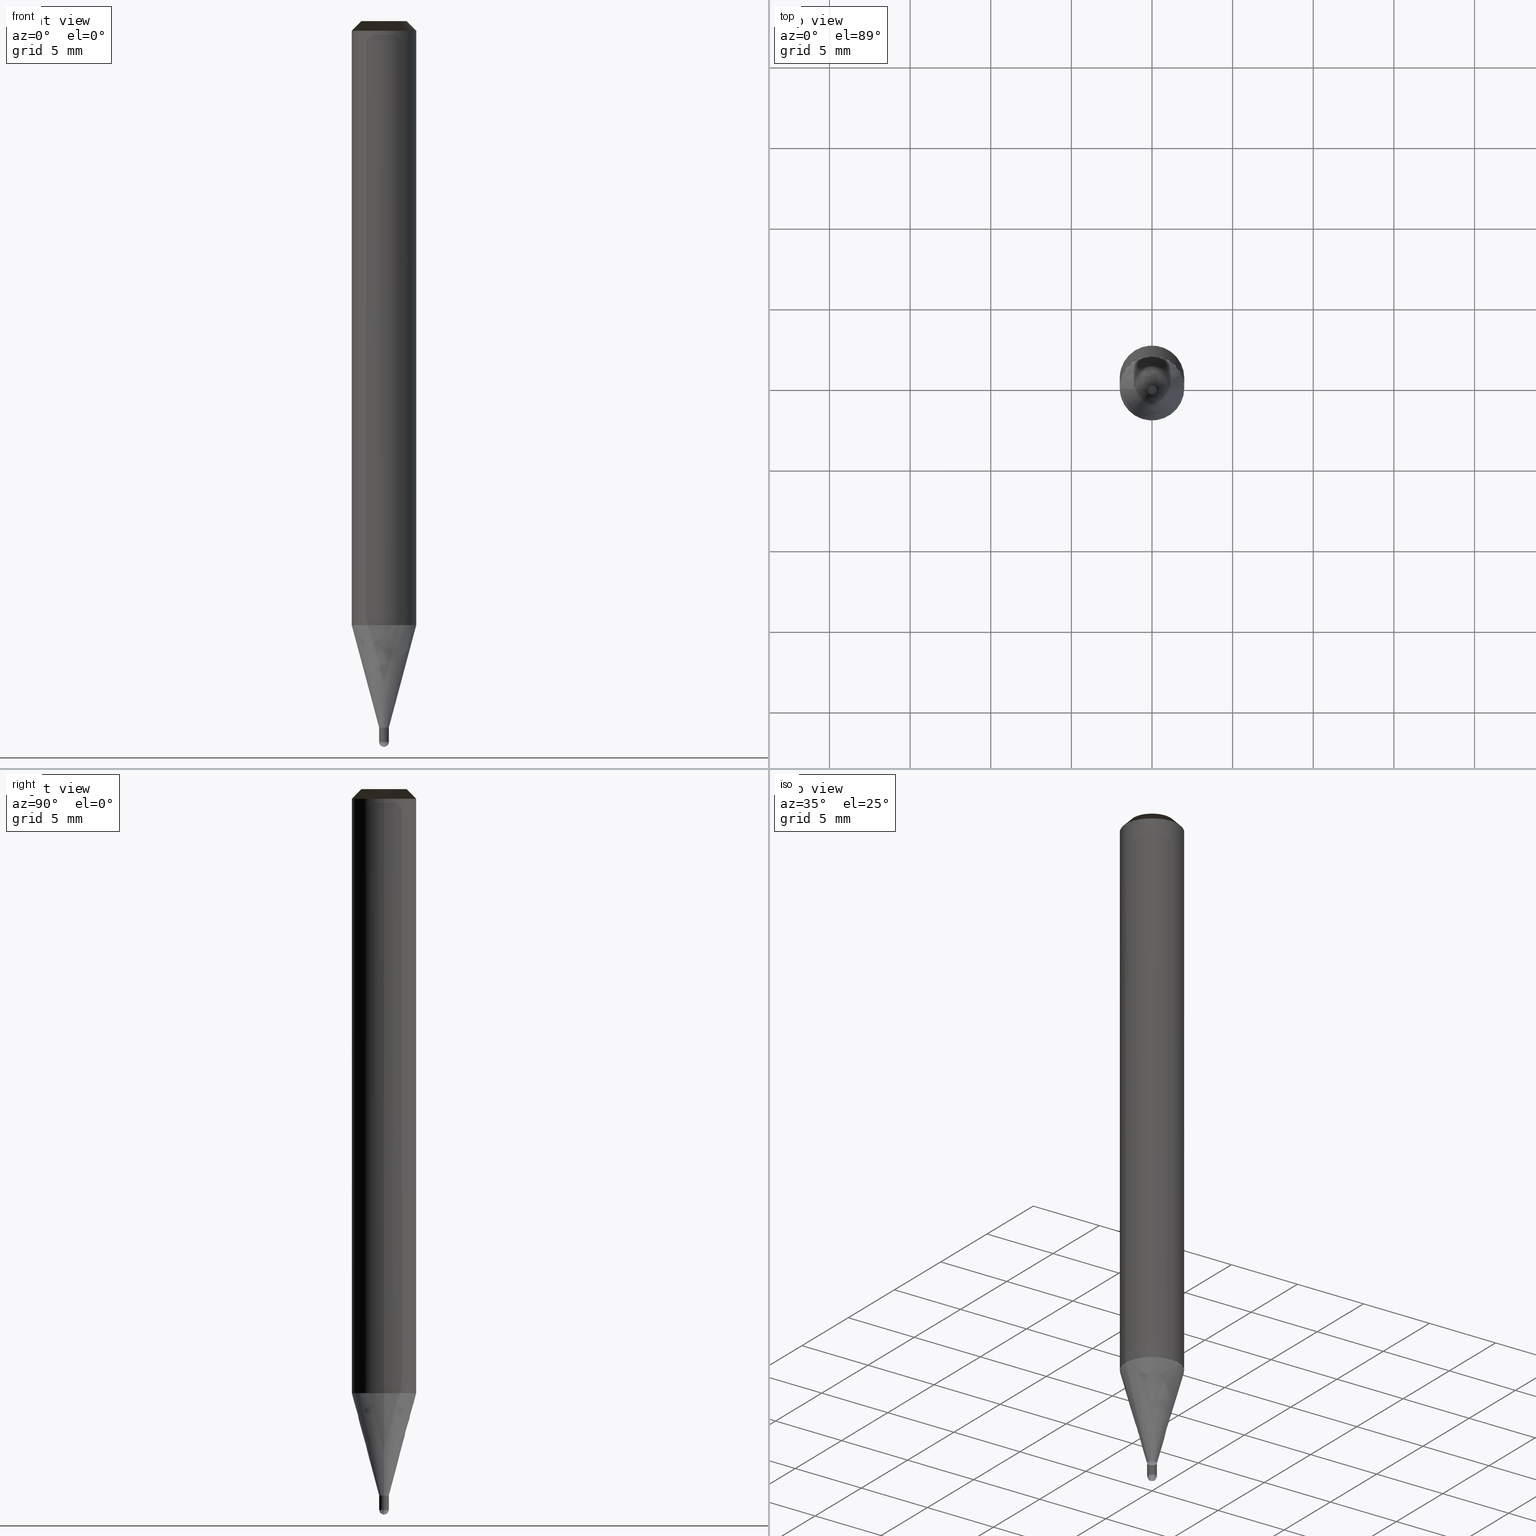
[diagram: canonical four-view strip — front | top / right | iso, engineering-drawing reading convention]
A machine part, canonical four-view strip (front | top / right | iso — engineering-drawing reading convention). The complete STEP part file that produces these views, byte-faithful:
ISO-10303-21;
HEADER;
/* Generated by ISBE GmbH (www.isbe.de) */
/* OPTION: using custom schema-name function */

FILE_DESCRIPTION(
/* description */ (''),
/* implementation_level */ '2;1');

FILE_NAME(
/*name*/ 'SHBS-2006-S04-STH',
/*time_stamp*/'2023-9-12T12:42:30',
/*author*/ ('ISBE GmbH'),
/*organization*/ ('ISBE GmbH'),
/*preprocessor_version*/ 'STEP IO v1.0',
/*originating_system*/ '',
/*authorisation*/ '');

FILE_SCHEMA (('AUTOMOTIVE_DESIGN'));
ENDSEC;

DATA;
#10=SHAPE_DEFINITION_REPRESENTATION(#11,#57);
#11=PRODUCT_DEFINITION_SHAPE('Document','',#13);
#12=PRODUCT_DEFINITION_CONTEXT('3D Mechanical Parts',#17,'design');
#13=PRODUCT_DEFINITION('A','First version',#14,#12);
#14=PRODUCT_DEFINITION_FORMATION_WITH_SPECIFIED_SOURCE('A','First version',#19,.MADE.);
#15=PRODUCT_RELATED_PRODUCT_CATEGORY('tool','tool',(#19));
#16=APPLICATION_PROTOCOL_DEFINITION('Draft International Standard', 'automotive_design',1999,#17);
#17=APPLICATION_CONTEXT('data for automotive mechanical design processes');
#18=PRODUCT_CONTEXT('3D Mechanical Parts',#17,'mechanical');
#19=PRODUCT('Document','Document','ISBE converted to STEP',(#18));
#20=(
LENGTH_UNIT()
NAMED_UNIT(*)
SI_UNIT(.MILLI.,.METRE.)
);
#21=(
NAMED_UNIT(*)
PLANE_ANGLE_UNIT()
SI_UNIT($,.RADIAN.)
);
#22=DIMENSIONAL_EXPONENTS(0.,0.,0.,0.,0.,0.,0.);
#23=PLANE_ANGLE_MEASURE_WITH_UNIT(PLANE_ANGLE_MEASURE(0.01745329252),#21);
#24=(
CONVERSION_BASED_UNIT('DEGREES',#23)
NAMED_UNIT(#22)
PLANE_ANGLE_UNIT()
);
#25=(
NAMED_UNIT(*)
SI_UNIT($,.STERADIAN.)
SOLID_ANGLE_UNIT()
);
#26=UNCERTAINTY_MEASURE_WITH_UNIT(LENGTH_MEASURE(0.001),#20, 'DISTANCE_ACCURACY_VALUE', 'Maximum model space distance between geometric entities at asserted connectivities');
#27=(
GEOMETRIC_REPRESENTATION_CONTEXT(3)
GLOBAL_UNCERTAINTY_ASSIGNED_CONTEXT((#26))
GLOBAL_UNIT_ASSIGNED_CONTEXT((#25,#24,#20))
REPRESENTATION_CONTEXT('ID1','3D')
);
#28=CARTESIAN_POINT('',(0.0,0.0,0.0));
#29=DIRECTION('',(1.0,0.0,0.0));
#30=DIRECTION('',(0.0,0.0,1.0));
#31=AXIS2_PLACEMENT_3D('',#28,#30,#29);
#32=CARTESIAN_POINT('',(0.0,0.0,0.0));
#33=DIRECTION('',(1.0,0.0,0.0));
#34=DIRECTION('',(0.0,0.0,1.0));
#35=AXIS2_PLACEMENT_3D('',#32,#34,#33);
#36=CARTESIAN_POINT('',(0.0,0.0,0.0));
#37=DIRECTION('',(1.0,0.0,0.0));
#38=DIRECTION('',(0.0,0.0,1.0));
#39=AXIS2_PLACEMENT_3D('',#36,#38,#37);
#40=CARTESIAN_POINT('',(0.0,0.0,0.0));
#41=DIRECTION('',(0.0,0.0,1.0));
#42=DIRECTION('',(1.0,0.0,0.0));
#43=AXIS2_PLACEMENT_3D('MCS',#40,#42,#41);
#44=CARTESIAN_POINT('',(0.0,0.0,37.455));
#45=DIRECTION('',(0.0,0.0,1.0));
#46=DIRECTION('',(1.0,0.0,0.0));
#47=AXIS2_PLACEMENT_3D('PCS',#44,#46,#45);
#48=CARTESIAN_POINT('',(0.0,0.0,-7.545));
#49=DIRECTION('',(0.0,0.0,1.0));
#50=DIRECTION('',(1.0,0.0,0.0));
#51=AXIS2_PLACEMENT_3D('CIP',#48,#50,#49);
#52=CARTESIAN_POINT('',(0.0,-0.3,-7.545));
#53=DIRECTION('',(0.0,0.0,1.0));
#54=DIRECTION('',(1.0,0.0,0.0));
#55=AXIS2_PLACEMENT_3D('CRP',#52,#54,#53);
#57=SHAPE_REPRESENTATION('Document',(#31,#35,#39,#43,#47,#51,#55),#27);
#58=DIRECTION('',(1.0,0.0,0.0));
#59=DIRECTION('',(0.0,0.0,1.0));
#60=CARTESIAN_POINT('',(-0.002999847207,-0.000030277632,-7.54495191028));
#61=CARTESIAN_POINT('',(-0.002905776231,-0.009165903705,-7.54484586486));
#62=CARTESIAN_POINT('',(-0.002787437382,-0.019017875034,-7.544383617825));
#63=CARTESIAN_POINT('',(-0.002636826318,-0.028685973617,-7.543613733885));
#64=CARTESIAN_POINT('',(-0.002435945538,-0.038285732755,-7.542537004147));
#65=CARTESIAN_POINT('',(-0.002168076614,-0.047830856446,-7.541154535024));
#66=CARTESIAN_POINT('',(-0.001817010618,-0.057318796148,-7.539467747097));
#67=CARTESIAN_POINT('',(-0.001367018916,-0.066742281978,-7.537478373655));
#68=CARTESIAN_POINT('',(-0.000802910246,-0.07609213921,-7.535188458912));
#69=CARTESIAN_POINT('',(-0.000110105636,-0.085358204975,-7.532600355911));
#70=CARTESIAN_POINT('',(0.000725282489,-0.09452968307,-7.529716724103));
#71=CARTESIAN_POINT('',(0.001716370932,-0.103595298852,-7.526540526615));
#72=CARTESIAN_POINT('',(0.002875427599,-0.112543374579,-7.523075027204));
#73=CARTESIAN_POINT('',(0.004213795439,-0.121361871551,-7.519323786905));
#74=CARTESIAN_POINT('',(0.005741819041,-0.130038419055,-7.515290660371));
#75=CARTESIAN_POINT('',(0.007468774374,-0.138560339578,-7.510979791912));
#76=CARTESIAN_POINT('',(0.009402802161,-0.146914675024,-7.506395611237));
#77=CARTESIAN_POINT('',(0.011550845378,-0.155088216542,-7.501542828902));
#78=CARTESIAN_POINT('',(0.013918591354,-0.163067539303,-7.496426431468));
#79=CARTESIAN_POINT('',(0.016510418993,-0.170839043008,-7.491051676379));
#80=CARTESIAN_POINT('',(0.019329351599,-0.178388998451,-7.48542408656));
#81=CARTESIAN_POINT('',(0.022377015833,-0.185703600219,-7.47954944474));
#82=CARTESIAN_POINT('',(0.025653607279,-0.192769025409,-7.473433787511));
#83=CARTESIAN_POINT('',(0.029157863118,-0.199571498097,-7.467083399123));
#84=CARTESIAN_POINT('',(0.032887042363,-0.206097359163,-7.460504805029));
#85=CARTESIAN_POINT('',(0.036836914085,-0.212333140963,-7.453704765181));
#86=CARTESIAN_POINT('',(0.041001754026,-0.218265646249,-7.446690267078));
#87=CARTESIAN_POINT('',(0.045374349933,-0.223882030643,-7.439468518592));
#88=CARTESIAN_POINT('',(0.049946015908,-0.229169887906,-7.432046940558));
#89=CARTESIAN_POINT('',(0.054706615983,-0.234117337175,-7.424433159147));
#90=CARTESIAN_POINT('',(0.059644597071,-0.238713111264,-7.416634998037));
#91=CARTESIAN_POINT('',(0.064747031372,-0.242946645108,-7.408660470363));
#92=CARTESIAN_POINT('',(0.069999668191,-0.246808163386,-7.400517770493));
#93=CARTESIAN_POINT('',(0.07538699508,-0.250288766322,-7.392215265601));
#94=CARTESIAN_POINT('',(0.080892308095,-0.253380512661,-7.383761487072));
#95=CARTESIAN_POINT('',(0.086497790861,-0.256076498843,-7.375165121735));
#96=CARTESIAN_POINT('',(0.09218460205,-0.258370933362,-7.366435002937));
#97=CARTESIAN_POINT('',(0.097932970784,-0.260259205385,-7.357580101464));
#98=CARTESIAN_POINT('',(0.103722299356,-0.2617379467,-7.348609516326));
#99=CARTESIAN_POINT('',(0.109531272607,-0.262805086148,-7.339532465407));
#100=CARTESIAN_POINT('',(0.115337973176,-0.263459895741,-7.330358275989));
#101=CARTESIAN_POINT('',(0.121120001781,-0.263703027768,-7.321096375173));
#102=CARTESIAN_POINT('',(0.126854601617,-0.263536542256,-7.311756280187));
#103=CARTESIAN_POINT('',(0.132518785892,-0.262963924268,-7.30234758861));
#104=CARTESIAN_POINT('',(0.138089467468,-0.261990090633,-7.29287996851));
#105=CARTESIAN_POINT('',(0.143543589553,-0.260621385798,-7.283363148505));
#106=CARTESIAN_POINT('',(0.148858256343,-0.258865566623,-7.273806907772));
#107=CARTESIAN_POINT('',(0.154010862521,-0.256731776077,-7.264221065994));
#108=CARTESIAN_POINT('',(0.158979220509,-0.25423050588,-7.254615473272));
#109=CARTESIAN_POINT('',(0.163741684402,-0.251373548308,-7.245));
#110=CARTESIAN_POINT('',(0.198195797186,-0.225207517588,-7.17));
#111=CARTESIAN_POINT('',(0.228527994425,-0.194357803456,-7.095));
#112=CARTESIAN_POINT('',(0.254107451667,-0.159465993262,-7.02));
#113=CARTESIAN_POINT('',(0.274402188094,-0.121257738595,-6.945));
#114=CARTESIAN_POINT('',(0.288990130227,-0.080527663764,-6.87));
#115=CARTESIAN_POINT('',(0.29756788987,-0.038122839853,-6.795));
#116=CARTESIAN_POINT('',(0.29995707373,0.005074831981,-6.72));
#117=CARTESIAN_POINT('',(0.296107993497,0.048166961572,-6.645));
#118=CARTESIAN_POINT('',(0.286100699223,0.090257353739,-6.57));
#119=CARTESIAN_POINT('',(0.270143314503,0.130470646619,-6.495));
#120=CARTESIAN_POINT('',(0.24856770809,0.167970516743,-6.42));
#121=CARTESIAN_POINT('',(0.221822591958,0.201977072206,-6.345));
#122=CARTESIAN_POINT('',(0.002999847207,0.000030277632,-7.54495191028));
#123=CARTESIAN_POINT('',(0.002905776231,0.009165903705,-7.54484586486));
#124=CARTESIAN_POINT('',(0.002787437382,0.019017875034,-7.544383617825));
#125=CARTESIAN_POINT('',(0.002636826318,0.028685973617,-7.543613733885));
#126=CARTESIAN_POINT('',(0.002435945538,0.038285732755,-7.542537004147));
#127=CARTESIAN_POINT('',(0.002168076614,0.047830856446,-7.541154535024));
#128=CARTESIAN_POINT('',(0.001817010618,0.057318796148,-7.539467747097));
#129=CARTESIAN_POINT('',(0.001367018916,0.066742281978,-7.537478373655));
#130=CARTESIAN_POINT('',(0.000802910246,0.07609213921,-7.535188458912));
#131=CARTESIAN_POINT('',(0.000110105636,0.085358204975,-7.532600355911));
#132=CARTESIAN_POINT('',(-0.000725282489,0.09452968307,-7.529716724103));
#133=CARTESIAN_POINT('',(-0.001716370932,0.103595298852,-7.526540526615));
#134=CARTESIAN_POINT('',(-0.002875427599,0.112543374579,-7.523075027204));
#135=CARTESIAN_POINT('',(-0.004213795439,0.121361871551,-7.519323786905));
#136=CARTESIAN_POINT('',(-0.005741819041,0.130038419055,-7.515290660371));
#137=CARTESIAN_POINT('',(-0.007468774374,0.138560339578,-7.510979791912));
#138=CARTESIAN_POINT('',(-0.009402802161,0.146914675024,-7.506395611237));
#139=CARTESIAN_POINT('',(-0.011550845378,0.155088216542,-7.501542828902));
#140=CARTESIAN_POINT('',(-0.013918591354,0.163067539303,-7.496426431468));
#141=CARTESIAN_POINT('',(-0.016510418993,0.170839043008,-7.491051676379));
#142=CARTESIAN_POINT('',(-0.019329351599,0.178388998451,-7.48542408656));
#143=CARTESIAN_POINT('',(-0.022377015833,0.185703600219,-7.47954944474));
#144=CARTESIAN_POINT('',(-0.025653607279,0.192769025409,-7.473433787511));
#145=CARTESIAN_POINT('',(-0.029157863118,0.199571498097,-7.467083399123));
#146=CARTESIAN_POINT('',(-0.032887042363,0.206097359163,-7.460504805029));
#147=CARTESIAN_POINT('',(-0.036836914085,0.212333140963,-7.453704765181));
#148=CARTESIAN_POINT('',(-0.041001754026,0.218265646249,-7.446690267078));
#149=CARTESIAN_POINT('',(-0.045374349933,0.223882030643,-7.439468518592));
#150=CARTESIAN_POINT('',(-0.049946015908,0.229169887906,-7.432046940558));
#151=CARTESIAN_POINT('',(-0.054706615983,0.234117337175,-7.424433159147));
#152=CARTESIAN_POINT('',(-0.059644597071,0.238713111264,-7.416634998037));
#153=CARTESIAN_POINT('',(-0.064747031372,0.242946645108,-7.408660470363));
#154=CARTESIAN_POINT('',(-0.069999668191,0.246808163386,-7.400517770493));
#155=CARTESIAN_POINT('',(-0.07538699508,0.250288766322,-7.392215265601));
#156=CARTESIAN_POINT('',(-0.080892308095,0.253380512661,-7.383761487072));
#157=CARTESIAN_POINT('',(-0.086497790861,0.256076498843,-7.375165121735));
#158=CARTESIAN_POINT('',(-0.09218460205,0.258370933362,-7.366435002937));
#159=CARTESIAN_POINT('',(-0.097932970784,0.260259205385,-7.357580101464));
#160=CARTESIAN_POINT('',(-0.103722299356,0.2617379467,-7.348609516326));
#161=CARTESIAN_POINT('',(-0.109531272607,0.262805086148,-7.339532465407));
#162=CARTESIAN_POINT('',(-0.115337973176,0.263459895741,-7.330358275989));
#163=CARTESIAN_POINT('',(-0.121120001781,0.263703027768,-7.321096375173));
#164=CARTESIAN_POINT('',(-0.126854601617,0.263536542256,-7.311756280187));
#165=CARTESIAN_POINT('',(-0.132518785892,0.262963924268,-7.30234758861));
#166=CARTESIAN_POINT('',(-0.138089467468,0.261990090633,-7.29287996851));
#167=CARTESIAN_POINT('',(-0.143543589553,0.260621385798,-7.283363148505));
#168=CARTESIAN_POINT('',(-0.148858256343,0.258865566623,-7.273806907772));
#169=CARTESIAN_POINT('',(-0.154010862521,0.256731776077,-7.264221065994));
#170=CARTESIAN_POINT('',(-0.158979220509,0.25423050588,-7.254615473272));
#171=CARTESIAN_POINT('',(-0.163741684402,0.251373548308,-7.245));
#172=CARTESIAN_POINT('',(-0.198195797186,0.225207517588,-7.17));
#173=CARTESIAN_POINT('',(-0.228527994425,0.194357803456,-7.095));
#174=CARTESIAN_POINT('',(-0.254107451667,0.159465993262,-7.02));
#175=CARTESIAN_POINT('',(-0.274402188094,0.121257738595,-6.945));
#176=CARTESIAN_POINT('',(-0.288990130227,0.080527663764,-6.87));
#177=CARTESIAN_POINT('',(-0.29756788987,0.038122839853,-6.795));
#178=CARTESIAN_POINT('',(-0.29995707373,-0.005074831981,-6.72));
#179=CARTESIAN_POINT('',(-0.296107993497,-0.048166961572,-6.645));
#180=CARTESIAN_POINT('',(-0.286100699223,-0.090257353739,-6.57));
#181=CARTESIAN_POINT('',(-0.270143314503,-0.130470646619,-6.495));
#182=CARTESIAN_POINT('',(-0.24856770809,-0.167970516743,-6.42));
#183=CARTESIAN_POINT('',(-0.221822591958,-0.201977072206,-6.345));
#184=CARTESIAN_POINT('',(0.0,0.0,-7.545));
#185=CARTESIAN_POINT('',(0.3,0.0,-7.545));
#186=CARTESIAN_POINT('',(0.3,0.3,-7.545));
#187=CARTESIAN_POINT('',(0.0,0.3,-7.545));
#188=CARTESIAN_POINT('',(-0.3,0.3,-7.545));
#189=CARTESIAN_POINT('',(-0.3,0.0,-7.545));
#190=CARTESIAN_POINT('',(0.3,0.0,-7.245));
#191=CARTESIAN_POINT('',(0.3,0.3,-7.245));
#192=CARTESIAN_POINT('',(0.0,0.3,-7.245));
#193=CARTESIAN_POINT('',(-0.3,0.3,-7.245));
#194=CARTESIAN_POINT('',(-0.3,0.0,-7.245));
#195=CARTESIAN_POINT('',(0.3,0.0,-6.345));
#196=CARTESIAN_POINT('',(0.3,0.3,-6.345));
#197=CARTESIAN_POINT('',(0.0,0.3,-6.345));
#198=CARTESIAN_POINT('',(-0.3,0.3,-6.345));
#199=CARTESIAN_POINT('',(-0.3,0.0,-6.345));
#200=CARTESIAN_POINT('',(0.0,0.0,-6.345));
#201=CARTESIAN_POINT('',(-0.3,-0.3,-7.545));
#202=CARTESIAN_POINT('',(0.0,-0.3,-7.545));
#203=CARTESIAN_POINT('',(0.3,-0.3,-7.545));
#204=CARTESIAN_POINT('',(-0.3,-0.3,-7.245));
#205=CARTESIAN_POINT('',(0.0,-0.3,-7.245));
#206=CARTESIAN_POINT('',(0.3,-0.3,-7.245));
#207=CARTESIAN_POINT('',(-0.3,-0.3,-6.345));
#208=CARTESIAN_POINT('',(0.0,-0.3,-6.345));
#209=CARTESIAN_POINT('',(0.3,-0.3,-6.345));
#210=CARTESIAN_POINT('',(0.3,0.0,-6.344486372867));
#211=CARTESIAN_POINT('',(0.3,0.3,-6.344486372867));
#212=CARTESIAN_POINT('',(0.0,0.3,-6.344486372867));
#213=CARTESIAN_POINT('',(-0.3,0.3,-6.344486372867));
#214=CARTESIAN_POINT('',(-0.3,0.0,-6.344486372867));
#215=CARTESIAN_POINT('',(2.0,0.0,-0.0));
#216=CARTESIAN_POINT('',(2.0,2.0,-0.0));
#217=CARTESIAN_POINT('',(0.0,2.0,-0.0));
#218=CARTESIAN_POINT('',(-2.0,2.0,-0.0));
#219=CARTESIAN_POINT('',(-2.0,0.0,-0.0));
#220=CARTESIAN_POINT('',(2.0,0.0,36.855));
#221=CARTESIAN_POINT('',(2.0,2.0,36.855));
#222=CARTESIAN_POINT('',(0.0,2.0,36.855));
#223=CARTESIAN_POINT('',(-2.0,2.0,36.855));
#224=CARTESIAN_POINT('',(-2.0,0.0,36.855));
#225=CARTESIAN_POINT('',(1.4,0.0,37.455));
#226=CARTESIAN_POINT('',(1.4,1.4,37.455));
#227=CARTESIAN_POINT('',(0.0,1.4,37.455));
#228=CARTESIAN_POINT('',(-1.4,1.4,37.455));
#229=CARTESIAN_POINT('',(-1.4,0.0,37.455));
#230=CARTESIAN_POINT('',(0.0,0.0,37.455));
#231=CARTESIAN_POINT('',(-0.3,-0.3,-6.344486372867));
#232=CARTESIAN_POINT('',(0.0,-0.3,-6.344486372867));
#233=CARTESIAN_POINT('',(0.3,-0.3,-6.344486372867));
#234=CARTESIAN_POINT('',(-2.0,-2.0,-0.0));
#235=CARTESIAN_POINT('',(0.0,-2.0,-0.0));
#236=CARTESIAN_POINT('',(2.0,-2.0,-0.0));
#237=CARTESIAN_POINT('',(-2.0,-2.0,36.855));
#238=CARTESIAN_POINT('',(0.0,-2.0,36.855));
#239=CARTESIAN_POINT('',(2.0,-2.0,36.855));
#240=CARTESIAN_POINT('',(-1.4,-1.4,37.455));
#241=CARTESIAN_POINT('',(0.0,-1.4,37.455));
#242=CARTESIAN_POINT('',(1.4,-1.4,37.455));
#243=(
BOUNDED_CURVE()
B_SPLINE_CURVE(1,(#60,#61,#62,#63,#64,#65,#66,#67,#68,#69,#70,#71,#72,#73,#74,#75,#76,#77,#78,#79,#80,#81,#82,#83,#84,#85,#86,#87,#88,#89,#90,#91,#92,#93,#94,#95,#96,#97,#98,#99,#100,#101,#102,#103,#104,#105,#106,#107,#108,#109,#110,#111,#112,#113,#114,#115,#116,#117,#118,#119,#120,#121),.UNSPECIFIED.,.F.,.F.)
B_SPLINE_CURVE_WITH_KNOTS((2,1,1,1,1,1,1,1,1,1,1,1,1,1,1,1,1,1,1,1,1,1,1,1,1,1,1,1,1,1,1,1,1,1,1,1,1,1,1,1,1,1,1,1,1,1,1,1,1,1,1,1,1,1,1,1,1,1,1,1,1,2),
(0.0,0.005937244731,0.012346775879,0.018649965959,0.024928573328,0.031198340022,0.03746464194,0.04373002341,0.049996064458,0.056264008034,0.062535015704,0.068810286359,0.07509111552,0.081378924906,0.087675274896,0.093981865812,0.100300531046,0.10663322378,0.112981998436,0.119348987735,0.125736376124,0.132146370315,0.138581167641,0.145042922998,0.151533715079,0.158055512651,0.164610141568,0.171199253178,0.177824294744,0.184486482394,0.191186777083,0.197925863911,0.204704135107,0.211521676857,0.218378260116,0.225273335412,0.232206031643,0.239175158761,0.246179214203,0.253216392898,0.26028460062,0.267381470458,0.274504382144,0.281650483952,0.28881671691,0.295999841015,0.303196463191,0.310403066677,0.317616041572,0.324831716249,0.381095739895,0.437359763541,0.493623787187,0.549887810833,0.606151834479,0.662415858125,0.71867988177,0.774943905416,0.831207929062,0.887471952708,0.943735976354,1.0),.UNSPECIFIED.)
CURVE()
GEOMETRIC_REPRESENTATION_ITEM()
RATIONAL_B_SPLINE_CURVE((1.0,1.0,1.0,1.0,1.0,1.0,1.0,1.0,1.0,1.0,1.0,1.0,1.0,1.0,1.0,1.0,1.0,1.0,1.0,1.0,1.0,1.0,1.0,1.0,1.0,1.0,1.0,1.0,1.0,1.0,1.0,1.0,1.0,1.0,1.0,1.0,1.0,1.0,1.0,1.0,1.0,1.0,1.0,1.0,1.0,1.0,1.0,1.0,1.0,1.0,1.0,1.0,1.0,1.0,1.0,1.0,1.0,1.0,1.0,1.0,1.0,1.0))
REPRESENTATION_ITEM('')
);
#244=(
BOUNDED_CURVE()
B_SPLINE_CURVE(1,(#122,#123,#124,#125,#126,#127,#128,#129,#130,#131,#132,#133,#134,#135,#136,#137,#138,#139,#140,#141,#142,#143,#144,#145,#146,#147,#148,#149,#150,#151,#152,#153,#154,#155,#156,#157,#158,#159,#160,#161,#162,#163,#164,#165,#166,#167,#168,#169,#170,#171,#172,#173,#174,#175,#176,#177,#178,#179,#180,#181,#182,#183),.UNSPECIFIED.,.F.,.F.)
B_SPLINE_CURVE_WITH_KNOTS((2,1,1,1,1,1,1,1,1,1,1,1,1,1,1,1,1,1,1,1,1,1,1,1,1,1,1,1,1,1,1,1,1,1,1,1,1,1,1,1,1,1,1,1,1,1,1,1,1,1,1,1,1,1,1,1,1,1,1,1,1,2),
(0.0,0.005937244731,0.012346775879,0.018649965959,0.024928573328,0.031198340022,0.03746464194,0.04373002341,0.049996064458,0.056264008034,0.062535015704,0.068810286359,0.07509111552,0.081378924906,0.087675274896,0.093981865812,0.100300531046,0.10663322378,0.112981998436,0.119348987735,0.125736376124,0.132146370315,0.138581167641,0.145042922998,0.151533715079,0.158055512651,0.164610141568,0.171199253178,0.177824294744,0.184486482394,0.191186777083,0.197925863911,0.204704135107,0.211521676857,0.218378260116,0.225273335412,0.232206031643,0.239175158761,0.246179214203,0.253216392898,0.26028460062,0.267381470458,0.274504382144,0.281650483952,0.28881671691,0.295999841015,0.303196463191,0.310403066677,0.317616041572,0.324831716249,0.381095739895,0.437359763541,0.493623787187,0.549887810833,0.606151834479,0.662415858125,0.71867988177,0.774943905416,0.831207929062,0.887471952708,0.943735976354,1.0),.UNSPECIFIED.)
CURVE()
GEOMETRIC_REPRESENTATION_ITEM()
RATIONAL_B_SPLINE_CURVE((1.0,1.0,1.0,1.0,1.0,1.0,1.0,1.0,1.0,1.0,1.0,1.0,1.0,1.0,1.0,1.0,1.0,1.0,1.0,1.0,1.0,1.0,1.0,1.0,1.0,1.0,1.0,1.0,1.0,1.0,1.0,1.0,1.0,1.0,1.0,1.0,1.0,1.0,1.0,1.0,1.0,1.0,1.0,1.0,1.0,1.0,1.0,1.0,1.0,1.0,1.0,1.0,1.0,1.0,1.0,1.0,1.0,1.0,1.0,1.0,1.0,1.0))
REPRESENTATION_ITEM('')
);
#245=SHAPE_REPRESENTATION_RELATIONSHIP('','',#57,#246);
#246=GEOMETRICALLY_BOUNDED_WIREFRAME_SHAPE_REPRESENTATION('Curves',(#247,#31),#27);
#247=GEOMETRIC_CURVE_SET('CurveSet',(#243,#244));
#248=(
BOUNDED_SURFACE()
B_SPLINE_SURFACE(2,2,(
(#184,#184,#184,#184,#184),
(#185,#186,#187,#188,#189),
(#190,#191,#192,#193,#194)
), .UNSPECIFIED.,.F.,.F.,.F.)
B_SPLINE_SURFACE_WITH_KNOTS((3,3),(3,2,3),(
0.0,1.0),(
0.0,0.5,1.0), .UNSPECIFIED.)
GEOMETRIC_REPRESENTATION_ITEM()
RATIONAL_B_SPLINE_SURFACE(((1.0,0.707106781187,1.0,0.707106781187,1.0),
(0.707106781187,0.5,0.707106781187,0.5,0.707106781187),
(1.0,0.707106781187,1.0,0.707106781187,1.0)
))
REPRESENTATION_ITEM('')
SURFACE()
);
#249=(
BOUNDED_CURVE()
B_SPLINE_CURVE(2,(#190,#191,#192,#193,#194),.UNSPECIFIED.,.F.,.F.)
B_SPLINE_CURVE_WITH_KNOTS((3,2,3),
(0.0,0.5,1.0),.UNSPECIFIED.)
CURVE()
GEOMETRIC_REPRESENTATION_ITEM()
RATIONAL_B_SPLINE_CURVE((1.0,0.707106781187,1.0,0.707106781187,1.0))
REPRESENTATION_ITEM('')
);
#250=(
BOUNDED_CURVE()
B_SPLINE_CURVE(2,(#194,#189,#184),.UNSPECIFIED.,.F.,.F.)
B_SPLINE_CURVE_WITH_KNOTS((3,3),
(0.0,1.0),.UNSPECIFIED.)
CURVE()
GEOMETRIC_REPRESENTATION_ITEM()
RATIONAL_B_SPLINE_CURVE((1.0,0.707106781187,1.0))
REPRESENTATION_ITEM('')
);
#251=(
BOUNDED_CURVE()
B_SPLINE_CURVE(2,(#184,#185,#190),.UNSPECIFIED.,.F.,.F.)
B_SPLINE_CURVE_WITH_KNOTS((3,3),
(0.0,1.0),.UNSPECIFIED.)
CURVE()
GEOMETRIC_REPRESENTATION_ITEM()
RATIONAL_B_SPLINE_CURVE((1.0,0.707106781187,1.0))
REPRESENTATION_ITEM('')
);
#252=VERTEX_POINT('',#184);
#253=VERTEX_POINT('',#190);
#254=VERTEX_POINT('',#194);
#255=EDGE_CURVE('',#253,#254,#249,.T.);
#256=EDGE_CURVE('',#254,#252,#250,.T.);
#257=EDGE_CURVE('',#252,#253,#251,.T.);
#258=ORIENTED_EDGE('',*,*,#255,.T.);
#259=ORIENTED_EDGE('',*,*,#256,.T.);
#260=ORIENTED_EDGE('',*,*,#257,.T.);
#261=EDGE_LOOP('',(#258,#259,#260));
#262=FACE_OUTER_BOUND('',#261,.T.);
#263=ADVANCED_FACE('',(#262),#248,.T.);
#264=(
BOUNDED_SURFACE()
B_SPLINE_SURFACE(1,2,(
(#190,#191,#192,#193,#194),
(#195,#196,#197,#198,#199)
), .UNSPECIFIED.,.F.,.F.,.F.)
B_SPLINE_SURFACE_WITH_KNOTS((2,2),(3,2,3),(
0.0,1.0),(
0.0,0.5,1.0), .UNSPECIFIED.)
GEOMETRIC_REPRESENTATION_ITEM()
RATIONAL_B_SPLINE_SURFACE(((1.0,0.707106781187,1.0,0.707106781187,1.0),
(1.0,0.707106781187,1.0,0.707106781187,1.0)
))
REPRESENTATION_ITEM('')
SURFACE()
);
#265=(
BOUNDED_CURVE()
B_SPLINE_CURVE(2,(#195,#196,#197,#198,#199),.UNSPECIFIED.,.F.,.F.)
B_SPLINE_CURVE_WITH_KNOTS((3,2,3),
(0.0,0.5,1.0),.UNSPECIFIED.)
CURVE()
GEOMETRIC_REPRESENTATION_ITEM()
RATIONAL_B_SPLINE_CURVE((1.0,0.707106781187,1.0,0.707106781187,1.0))
REPRESENTATION_ITEM('')
);
#266=(
BOUNDED_CURVE()
B_SPLINE_CURVE(1,(#199,#194),.UNSPECIFIED.,.F.,.F.)
B_SPLINE_CURVE_WITH_KNOTS((2,2),
(0.0,1.0),.UNSPECIFIED.)
CURVE()
GEOMETRIC_REPRESENTATION_ITEM()
RATIONAL_B_SPLINE_CURVE((1.0,1.0))
REPRESENTATION_ITEM('')
);
#267=(
BOUNDED_CURVE()
B_SPLINE_CURVE(2,(#194,#193,#192,#191,#190),.UNSPECIFIED.,.F.,.F.)
B_SPLINE_CURVE_WITH_KNOTS((3,2,3),
(0.0,0.5,1.0),.UNSPECIFIED.)
CURVE()
GEOMETRIC_REPRESENTATION_ITEM()
RATIONAL_B_SPLINE_CURVE((1.0,0.707106781187,1.0,0.707106781187,1.0))
REPRESENTATION_ITEM('')
);
#268=(
BOUNDED_CURVE()
B_SPLINE_CURVE(1,(#190,#195),.UNSPECIFIED.,.F.,.F.)
B_SPLINE_CURVE_WITH_KNOTS((2,2),
(0.0,1.0),.UNSPECIFIED.)
CURVE()
GEOMETRIC_REPRESENTATION_ITEM()
RATIONAL_B_SPLINE_CURVE((1.0,1.0))
REPRESENTATION_ITEM('')
);
#269=VERTEX_POINT('',#190);
#270=VERTEX_POINT('',#194);
#271=VERTEX_POINT('',#195);
#272=VERTEX_POINT('',#199);
#273=EDGE_CURVE('',#271,#272,#265,.T.);
#274=EDGE_CURVE('',#272,#270,#266,.T.);
#275=EDGE_CURVE('',#270,#269,#267,.T.);
#276=EDGE_CURVE('',#269,#271,#268,.T.);
#277=ORIENTED_EDGE('',*,*,#273,.T.);
#278=ORIENTED_EDGE('',*,*,#274,.T.);
#279=ORIENTED_EDGE('',*,*,#275,.T.);
#280=ORIENTED_EDGE('',*,*,#276,.T.);
#281=EDGE_LOOP('',(#277,#278,#279,#280));
#282=FACE_OUTER_BOUND('',#281,.T.);
#283=ADVANCED_FACE('',(#282),#264,.T.);
#284=(
BOUNDED_SURFACE()
B_SPLINE_SURFACE(1,2,(
(#195,#196,#197,#198,#199),
(#200,#200,#200,#200,#200)
), .UNSPECIFIED.,.F.,.F.,.F.)
B_SPLINE_SURFACE_WITH_KNOTS((2,2),(3,2,3),(
0.0,1.0),(
0.0,0.5,1.0), .UNSPECIFIED.)
GEOMETRIC_REPRESENTATION_ITEM()
RATIONAL_B_SPLINE_SURFACE(((1.0,0.707106781187,1.0,0.707106781187,1.0),
(1.0,0.707106781187,1.0,0.707106781187,1.0)
))
REPRESENTATION_ITEM('')
SURFACE()
);
#285=(
BOUNDED_CURVE()
B_SPLINE_CURVE(1,(#200,#195),.UNSPECIFIED.,.F.,.F.)
B_SPLINE_CURVE_WITH_KNOTS((2,2),
(0.0,1.0),.UNSPECIFIED.)
CURVE()
GEOMETRIC_REPRESENTATION_ITEM()
RATIONAL_B_SPLINE_CURVE((1.0,1.0))
REPRESENTATION_ITEM('')
);
#286=(
BOUNDED_CURVE()
B_SPLINE_CURVE(2,(#195,#196,#197,#198,#199),.UNSPECIFIED.,.F.,.F.)
B_SPLINE_CURVE_WITH_KNOTS((3,2,3),
(0.0,0.5,1.0),.UNSPECIFIED.)
CURVE()
GEOMETRIC_REPRESENTATION_ITEM()
RATIONAL_B_SPLINE_CURVE((1.0,0.707106781187,1.0,0.707106781187,1.0))
REPRESENTATION_ITEM('')
);
#287=(
BOUNDED_CURVE()
B_SPLINE_CURVE(1,(#199,#200),.UNSPECIFIED.,.F.,.F.)
B_SPLINE_CURVE_WITH_KNOTS((2,2),
(0.0,1.0),.UNSPECIFIED.)
CURVE()
GEOMETRIC_REPRESENTATION_ITEM()
RATIONAL_B_SPLINE_CURVE((1.0,1.0))
REPRESENTATION_ITEM('')
);
#288=VERTEX_POINT('',#195);
#289=VERTEX_POINT('',#199);
#290=VERTEX_POINT('',#200);
#291=EDGE_CURVE('',#290,#288,#285,.T.);
#292=EDGE_CURVE('',#288,#289,#286,.T.);
#293=EDGE_CURVE('',#289,#290,#287,.T.);
#294=ORIENTED_EDGE('',*,*,#291,.T.);
#295=ORIENTED_EDGE('',*,*,#292,.T.);
#296=ORIENTED_EDGE('',*,*,#293,.T.);
#297=EDGE_LOOP('',(#294,#295,#296));
#298=FACE_OUTER_BOUND('',#297,.T.);
#299=ADVANCED_FACE('',(#298),#284,.T.);
#300=(
BOUNDED_SURFACE()
B_SPLINE_SURFACE(2,2,(
(#184,#184,#184,#184,#184),
(#189,#201,#202,#203,#185),
(#194,#204,#205,#206,#190)
), .UNSPECIFIED.,.F.,.F.,.F.)
B_SPLINE_SURFACE_WITH_KNOTS((3,3),(3,2,3),(
0.0,1.0),(
0.0,0.5,1.0), .UNSPECIFIED.)
GEOMETRIC_REPRESENTATION_ITEM()
RATIONAL_B_SPLINE_SURFACE(((1.0,0.707106781187,1.0,0.707106781187,1.0),
(0.707106781187,0.5,0.707106781187,0.5,0.707106781187),
(1.0,0.707106781187,1.0,0.707106781187,1.0)
))
REPRESENTATION_ITEM('')
SURFACE()
);
#301=(
BOUNDED_CURVE()
B_SPLINE_CURVE(2,(#194,#189,#184),.UNSPECIFIED.,.F.,.F.)
B_SPLINE_CURVE_WITH_KNOTS((3,3),
(0.0,1.0),.UNSPECIFIED.)
CURVE()
GEOMETRIC_REPRESENTATION_ITEM()
RATIONAL_B_SPLINE_CURVE((1.0,0.707106781187,1.0))
REPRESENTATION_ITEM('')
);
#302=(
BOUNDED_CURVE()
B_SPLINE_CURVE(2,(#184,#185,#190),.UNSPECIFIED.,.F.,.F.)
B_SPLINE_CURVE_WITH_KNOTS((3,3),
(0.0,1.0),.UNSPECIFIED.)
CURVE()
GEOMETRIC_REPRESENTATION_ITEM()
RATIONAL_B_SPLINE_CURVE((1.0,0.707106781187,1.0))
REPRESENTATION_ITEM('')
);
#303=(
BOUNDED_CURVE()
B_SPLINE_CURVE(2,(#190,#206,#205,#204,#194),.UNSPECIFIED.,.F.,.F.)
B_SPLINE_CURVE_WITH_KNOTS((3,2,3),
(0.0,0.5,1.0),.UNSPECIFIED.)
CURVE()
GEOMETRIC_REPRESENTATION_ITEM()
RATIONAL_B_SPLINE_CURVE((1.0,0.707106781187,1.0,0.707106781187,1.0))
REPRESENTATION_ITEM('')
);
#304=VERTEX_POINT('',#184);
#305=VERTEX_POINT('',#190);
#306=VERTEX_POINT('',#194);
#307=EDGE_CURVE('',#306,#304,#301,.T.);
#308=EDGE_CURVE('',#304,#305,#302,.T.);
#309=EDGE_CURVE('',#305,#306,#303,.T.);
#310=ORIENTED_EDGE('',*,*,#307,.T.);
#311=ORIENTED_EDGE('',*,*,#308,.T.);
#312=ORIENTED_EDGE('',*,*,#309,.T.);
#313=EDGE_LOOP('',(#310,#311,#312));
#314=FACE_OUTER_BOUND('',#313,.T.);
#315=ADVANCED_FACE('',(#314),#300,.T.);
#316=(
BOUNDED_SURFACE()
B_SPLINE_SURFACE(1,2,(
(#194,#204,#205,#206,#190),
(#199,#207,#208,#209,#195)
), .UNSPECIFIED.,.F.,.F.,.F.)
B_SPLINE_SURFACE_WITH_KNOTS((2,2),(3,2,3),(
0.0,1.0),(
0.0,0.5,1.0), .UNSPECIFIED.)
GEOMETRIC_REPRESENTATION_ITEM()
RATIONAL_B_SPLINE_SURFACE(((1.0,0.707106781187,1.0,0.707106781187,1.0),
(1.0,0.707106781187,1.0,0.707106781187,1.0)
))
REPRESENTATION_ITEM('')
SURFACE()
);
#317=(
BOUNDED_CURVE()
B_SPLINE_CURVE(1,(#199,#194),.UNSPECIFIED.,.F.,.F.)
B_SPLINE_CURVE_WITH_KNOTS((2,2),
(0.0,1.0),.UNSPECIFIED.)
CURVE()
GEOMETRIC_REPRESENTATION_ITEM()
RATIONAL_B_SPLINE_CURVE((1.0,1.0))
REPRESENTATION_ITEM('')
);
#318=(
BOUNDED_CURVE()
B_SPLINE_CURVE(2,(#194,#204,#205,#206,#190),.UNSPECIFIED.,.F.,.F.)
B_SPLINE_CURVE_WITH_KNOTS((3,2,3),
(0.0,0.5,1.0),.UNSPECIFIED.)
CURVE()
GEOMETRIC_REPRESENTATION_ITEM()
RATIONAL_B_SPLINE_CURVE((1.0,0.707106781187,1.0,0.707106781187,1.0))
REPRESENTATION_ITEM('')
);
#319=(
BOUNDED_CURVE()
B_SPLINE_CURVE(1,(#190,#195),.UNSPECIFIED.,.F.,.F.)
B_SPLINE_CURVE_WITH_KNOTS((2,2),
(0.0,1.0),.UNSPECIFIED.)
CURVE()
GEOMETRIC_REPRESENTATION_ITEM()
RATIONAL_B_SPLINE_CURVE((1.0,1.0))
REPRESENTATION_ITEM('')
);
#320=(
BOUNDED_CURVE()
B_SPLINE_CURVE(2,(#195,#209,#208,#207,#199),.UNSPECIFIED.,.F.,.F.)
B_SPLINE_CURVE_WITH_KNOTS((3,2,3),
(0.0,0.5,1.0),.UNSPECIFIED.)
CURVE()
GEOMETRIC_REPRESENTATION_ITEM()
RATIONAL_B_SPLINE_CURVE((1.0,0.707106781187,1.0,0.707106781187,1.0))
REPRESENTATION_ITEM('')
);
#321=VERTEX_POINT('',#190);
#322=VERTEX_POINT('',#194);
#323=VERTEX_POINT('',#195);
#324=VERTEX_POINT('',#199);
#325=EDGE_CURVE('',#324,#322,#317,.T.);
#326=EDGE_CURVE('',#322,#321,#318,.T.);
#327=EDGE_CURVE('',#321,#323,#319,.T.);
#328=EDGE_CURVE('',#323,#324,#320,.T.);
#329=ORIENTED_EDGE('',*,*,#325,.T.);
#330=ORIENTED_EDGE('',*,*,#326,.T.);
#331=ORIENTED_EDGE('',*,*,#327,.T.);
#332=ORIENTED_EDGE('',*,*,#328,.T.);
#333=EDGE_LOOP('',(#329,#330,#331,#332));
#334=FACE_OUTER_BOUND('',#333,.T.);
#335=ADVANCED_FACE('',(#334),#316,.T.);
#336=(
BOUNDED_SURFACE()
B_SPLINE_SURFACE(1,2,(
(#199,#207,#208,#209,#195),
(#200,#200,#200,#200,#200)
), .UNSPECIFIED.,.F.,.F.,.F.)
B_SPLINE_SURFACE_WITH_KNOTS((2,2),(3,2,3),(
0.0,1.0),(
0.0,0.5,1.0), .UNSPECIFIED.)
GEOMETRIC_REPRESENTATION_ITEM()
RATIONAL_B_SPLINE_SURFACE(((1.0,0.707106781187,1.0,0.707106781187,1.0),
(1.0,0.707106781187,1.0,0.707106781187,1.0)
))
REPRESENTATION_ITEM('')
SURFACE()
);
#337=(
BOUNDED_CURVE()
B_SPLINE_CURVE(1,(#200,#195),.UNSPECIFIED.,.F.,.F.)
B_SPLINE_CURVE_WITH_KNOTS((2,2),
(0.0,1.0),.UNSPECIFIED.)
CURVE()
GEOMETRIC_REPRESENTATION_ITEM()
RATIONAL_B_SPLINE_CURVE((1.0,1.0))
REPRESENTATION_ITEM('')
);
#338=(
BOUNDED_CURVE()
B_SPLINE_CURVE(2,(#195,#209,#208,#207,#199),.UNSPECIFIED.,.F.,.F.)
B_SPLINE_CURVE_WITH_KNOTS((3,2,3),
(0.0,0.5,1.0),.UNSPECIFIED.)
CURVE()
GEOMETRIC_REPRESENTATION_ITEM()
RATIONAL_B_SPLINE_CURVE((1.0,0.707106781187,1.0,0.707106781187,1.0))
REPRESENTATION_ITEM('')
);
#339=(
BOUNDED_CURVE()
B_SPLINE_CURVE(1,(#199,#200),.UNSPECIFIED.,.F.,.F.)
B_SPLINE_CURVE_WITH_KNOTS((2,2),
(0.0,1.0),.UNSPECIFIED.)
CURVE()
GEOMETRIC_REPRESENTATION_ITEM()
RATIONAL_B_SPLINE_CURVE((1.0,1.0))
REPRESENTATION_ITEM('')
);
#340=VERTEX_POINT('',#195);
#341=VERTEX_POINT('',#199);
#342=VERTEX_POINT('',#200);
#343=EDGE_CURVE('',#342,#340,#337,.T.);
#344=EDGE_CURVE('',#340,#341,#338,.T.);
#345=EDGE_CURVE('',#341,#342,#339,.T.);
#346=ORIENTED_EDGE('',*,*,#343,.T.);
#347=ORIENTED_EDGE('',*,*,#344,.T.);
#348=ORIENTED_EDGE('',*,*,#345,.T.);
#349=EDGE_LOOP('',(#346,#347,#348));
#350=FACE_OUTER_BOUND('',#349,.T.);
#351=ADVANCED_FACE('',(#350),#336,.T.);
#352=CLOSED_SHELL('',(#263,#283,#299,#315,#335,#351));
#353=SHAPE_REPRESENTATION_RELATIONSHIP('','',#57,#354);
#354=ADVANCED_BREP_SHAPE_REPRESENTATION('Solid0',(#355,#31),#27);
#355=MANIFOLD_SOLID_BREP('brep',#352);
#356=(
BOUNDED_SURFACE()
B_SPLINE_SURFACE(1,2,(
(#200,#200,#200,#200,#200),
(#195,#196,#197,#198,#199)
), .UNSPECIFIED.,.F.,.F.,.F.)
B_SPLINE_SURFACE_WITH_KNOTS((2,2),(3,2,3),(
0.0,1.0),(
0.0,0.5,1.0), .UNSPECIFIED.)
GEOMETRIC_REPRESENTATION_ITEM()
RATIONAL_B_SPLINE_SURFACE(((1.0,0.707106781187,1.0,0.707106781187,1.0),
(1.0,0.707106781187,1.0,0.707106781187,1.0)
))
REPRESENTATION_ITEM('')
SURFACE()
);
#357=(
BOUNDED_CURVE()
B_SPLINE_CURVE(2,(#195,#196,#197,#198,#199),.UNSPECIFIED.,.F.,.F.)
B_SPLINE_CURVE_WITH_KNOTS((3,2,3),
(0.0,0.5,1.0),.UNSPECIFIED.)
CURVE()
GEOMETRIC_REPRESENTATION_ITEM()
RATIONAL_B_SPLINE_CURVE((1.0,0.707106781187,1.0,0.707106781187,1.0))
REPRESENTATION_ITEM('')
);
#358=(
BOUNDED_CURVE()
B_SPLINE_CURVE(1,(#199,#200),.UNSPECIFIED.,.F.,.F.)
B_SPLINE_CURVE_WITH_KNOTS((2,2),
(0.0,1.0),.UNSPECIFIED.)
CURVE()
GEOMETRIC_REPRESENTATION_ITEM()
RATIONAL_B_SPLINE_CURVE((1.0,1.0))
REPRESENTATION_ITEM('')
);
#359=(
BOUNDED_CURVE()
B_SPLINE_CURVE(1,(#200,#195),.UNSPECIFIED.,.F.,.F.)
B_SPLINE_CURVE_WITH_KNOTS((2,2),
(0.0,1.0),.UNSPECIFIED.)
CURVE()
GEOMETRIC_REPRESENTATION_ITEM()
RATIONAL_B_SPLINE_CURVE((1.0,1.0))
REPRESENTATION_ITEM('')
);
#360=VERTEX_POINT('',#195);
#361=VERTEX_POINT('',#199);
#362=VERTEX_POINT('',#200);
#363=EDGE_CURVE('',#360,#361,#357,.T.);
#364=EDGE_CURVE('',#361,#362,#358,.T.);
#365=EDGE_CURVE('',#362,#360,#359,.T.);
#366=ORIENTED_EDGE('',*,*,#363,.T.);
#367=ORIENTED_EDGE('',*,*,#364,.T.);
#368=ORIENTED_EDGE('',*,*,#365,.T.);
#369=EDGE_LOOP('',(#366,#367,#368));
#370=FACE_OUTER_BOUND('',#369,.T.);
#371=ADVANCED_FACE('',(#370),#356,.T.);
#372=(
BOUNDED_SURFACE()
B_SPLINE_SURFACE(1,2,(
(#195,#196,#197,#198,#199),
(#210,#211,#212,#213,#214)
), .UNSPECIFIED.,.F.,.F.,.F.)
B_SPLINE_SURFACE_WITH_KNOTS((2,2),(3,2,3),(
0.0,1.0),(
0.0,0.5,1.0), .UNSPECIFIED.)
GEOMETRIC_REPRESENTATION_ITEM()
RATIONAL_B_SPLINE_SURFACE(((1.0,0.707106781187,1.0,0.707106781187,1.0),
(1.0,0.707106781187,1.0,0.707106781187,1.0)
))
REPRESENTATION_ITEM('')
SURFACE()
);
#373=(
BOUNDED_CURVE()
B_SPLINE_CURVE(2,(#210,#211,#212,#213,#214),.UNSPECIFIED.,.F.,.F.)
B_SPLINE_CURVE_WITH_KNOTS((3,2,3),
(0.0,0.5,1.0),.UNSPECIFIED.)
CURVE()
GEOMETRIC_REPRESENTATION_ITEM()
RATIONAL_B_SPLINE_CURVE((1.0,0.707106781187,1.0,0.707106781187,1.0))
REPRESENTATION_ITEM('')
);
#374=(
BOUNDED_CURVE()
B_SPLINE_CURVE(1,(#214,#199),.UNSPECIFIED.,.F.,.F.)
B_SPLINE_CURVE_WITH_KNOTS((2,2),
(0.0,1.0),.UNSPECIFIED.)
CURVE()
GEOMETRIC_REPRESENTATION_ITEM()
RATIONAL_B_SPLINE_CURVE((1.0,1.0))
REPRESENTATION_ITEM('')
);
#375=(
BOUNDED_CURVE()
B_SPLINE_CURVE(2,(#199,#198,#197,#196,#195),.UNSPECIFIED.,.F.,.F.)
B_SPLINE_CURVE_WITH_KNOTS((3,2,3),
(0.0,0.5,1.0),.UNSPECIFIED.)
CURVE()
GEOMETRIC_REPRESENTATION_ITEM()
RATIONAL_B_SPLINE_CURVE((1.0,0.707106781187,1.0,0.707106781187,1.0))
REPRESENTATION_ITEM('')
);
#376=(
BOUNDED_CURVE()
B_SPLINE_CURVE(1,(#195,#210),.UNSPECIFIED.,.F.,.F.)
B_SPLINE_CURVE_WITH_KNOTS((2,2),
(0.0,1.0),.UNSPECIFIED.)
CURVE()
GEOMETRIC_REPRESENTATION_ITEM()
RATIONAL_B_SPLINE_CURVE((1.0,1.0))
REPRESENTATION_ITEM('')
);
#377=VERTEX_POINT('',#195);
#378=VERTEX_POINT('',#199);
#379=VERTEX_POINT('',#210);
#380=VERTEX_POINT('',#214);
#381=EDGE_CURVE('',#379,#380,#373,.T.);
#382=EDGE_CURVE('',#380,#378,#374,.T.);
#383=EDGE_CURVE('',#378,#377,#375,.T.);
#384=EDGE_CURVE('',#377,#379,#376,.T.);
#385=ORIENTED_EDGE('',*,*,#381,.T.);
#386=ORIENTED_EDGE('',*,*,#382,.T.);
#387=ORIENTED_EDGE('',*,*,#383,.T.);
#388=ORIENTED_EDGE('',*,*,#384,.T.);
#389=EDGE_LOOP('',(#385,#386,#387,#388));
#390=FACE_OUTER_BOUND('',#389,.T.);
#391=ADVANCED_FACE('',(#390),#372,.T.);
#392=(
BOUNDED_SURFACE()
B_SPLINE_SURFACE(1,2,(
(#210,#211,#212,#213,#214),
(#215,#216,#217,#218,#219)
), .UNSPECIFIED.,.F.,.F.,.F.)
B_SPLINE_SURFACE_WITH_KNOTS((2,2),(3,2,3),(
0.0,1.0),(
0.0,0.5,1.0), .UNSPECIFIED.)
GEOMETRIC_REPRESENTATION_ITEM()
RATIONAL_B_SPLINE_SURFACE(((1.0,0.707106781187,1.0,0.707106781187,1.0),
(1.0,0.707106781187,1.0,0.707106781187,1.0)
))
REPRESENTATION_ITEM('')
SURFACE()
);
#393=(
BOUNDED_CURVE()
B_SPLINE_CURVE(2,(#215,#216,#217,#218,#219),.UNSPECIFIED.,.F.,.F.)
B_SPLINE_CURVE_WITH_KNOTS((3,2,3),
(0.0,0.5,1.0),.UNSPECIFIED.)
CURVE()
GEOMETRIC_REPRESENTATION_ITEM()
RATIONAL_B_SPLINE_CURVE((1.0,0.707106781187,1.0,0.707106781187,1.0))
REPRESENTATION_ITEM('')
);
#394=(
BOUNDED_CURVE()
B_SPLINE_CURVE(1,(#219,#214),.UNSPECIFIED.,.F.,.F.)
B_SPLINE_CURVE_WITH_KNOTS((2,2),
(0.0,1.0),.UNSPECIFIED.)
CURVE()
GEOMETRIC_REPRESENTATION_ITEM()
RATIONAL_B_SPLINE_CURVE((1.0,1.0))
REPRESENTATION_ITEM('')
);
#395=(
BOUNDED_CURVE()
B_SPLINE_CURVE(2,(#214,#213,#212,#211,#210),.UNSPECIFIED.,.F.,.F.)
B_SPLINE_CURVE_WITH_KNOTS((3,2,3),
(0.0,0.5,1.0),.UNSPECIFIED.)
CURVE()
GEOMETRIC_REPRESENTATION_ITEM()
RATIONAL_B_SPLINE_CURVE((1.0,0.707106781187,1.0,0.707106781187,1.0))
REPRESENTATION_ITEM('')
);
#396=(
BOUNDED_CURVE()
B_SPLINE_CURVE(1,(#210,#215),.UNSPECIFIED.,.F.,.F.)
B_SPLINE_CURVE_WITH_KNOTS((2,2),
(0.0,1.0),.UNSPECIFIED.)
CURVE()
GEOMETRIC_REPRESENTATION_ITEM()
RATIONAL_B_SPLINE_CURVE((1.0,1.0))
REPRESENTATION_ITEM('')
);
#397=VERTEX_POINT('',#210);
#398=VERTEX_POINT('',#214);
#399=VERTEX_POINT('',#215);
#400=VERTEX_POINT('',#219);
#401=EDGE_CURVE('',#399,#400,#393,.T.);
#402=EDGE_CURVE('',#400,#398,#394,.T.);
#403=EDGE_CURVE('',#398,#397,#395,.T.);
#404=EDGE_CURVE('',#397,#399,#396,.T.);
#405=ORIENTED_EDGE('',*,*,#401,.T.);
#406=ORIENTED_EDGE('',*,*,#402,.T.);
#407=ORIENTED_EDGE('',*,*,#403,.T.);
#408=ORIENTED_EDGE('',*,*,#404,.T.);
#409=EDGE_LOOP('',(#405,#406,#407,#408));
#410=FACE_OUTER_BOUND('',#409,.T.);
#411=ADVANCED_FACE('',(#410),#392,.T.);
#412=(
BOUNDED_SURFACE()
B_SPLINE_SURFACE(1,2,(
(#215,#216,#217,#218,#219),
(#220,#221,#222,#223,#224)
), .UNSPECIFIED.,.F.,.F.,.F.)
B_SPLINE_SURFACE_WITH_KNOTS((2,2),(3,2,3),(
0.0,1.0),(
0.0,0.5,1.0), .UNSPECIFIED.)
GEOMETRIC_REPRESENTATION_ITEM()
RATIONAL_B_SPLINE_SURFACE(((1.0,0.707106781187,1.0,0.707106781187,1.0),
(1.0,0.707106781187,1.0,0.707106781187,1.0)
))
REPRESENTATION_ITEM('')
SURFACE()
);
#413=(
BOUNDED_CURVE()
B_SPLINE_CURVE(2,(#220,#221,#222,#223,#224),.UNSPECIFIED.,.F.,.F.)
B_SPLINE_CURVE_WITH_KNOTS((3,2,3),
(0.0,0.5,1.0),.UNSPECIFIED.)
CURVE()
GEOMETRIC_REPRESENTATION_ITEM()
RATIONAL_B_SPLINE_CURVE((1.0,0.707106781187,1.0,0.707106781187,1.0))
REPRESENTATION_ITEM('')
);
#414=(
BOUNDED_CURVE()
B_SPLINE_CURVE(1,(#224,#219),.UNSPECIFIED.,.F.,.F.)
B_SPLINE_CURVE_WITH_KNOTS((2,2),
(0.0,1.0),.UNSPECIFIED.)
CURVE()
GEOMETRIC_REPRESENTATION_ITEM()
RATIONAL_B_SPLINE_CURVE((1.0,1.0))
REPRESENTATION_ITEM('')
);
#415=(
BOUNDED_CURVE()
B_SPLINE_CURVE(2,(#219,#218,#217,#216,#215),.UNSPECIFIED.,.F.,.F.)
B_SPLINE_CURVE_WITH_KNOTS((3,2,3),
(0.0,0.5,1.0),.UNSPECIFIED.)
CURVE()
GEOMETRIC_REPRESENTATION_ITEM()
RATIONAL_B_SPLINE_CURVE((1.0,0.707106781187,1.0,0.707106781187,1.0))
REPRESENTATION_ITEM('')
);
#416=(
BOUNDED_CURVE()
B_SPLINE_CURVE(1,(#215,#220),.UNSPECIFIED.,.F.,.F.)
B_SPLINE_CURVE_WITH_KNOTS((2,2),
(0.0,1.0),.UNSPECIFIED.)
CURVE()
GEOMETRIC_REPRESENTATION_ITEM()
RATIONAL_B_SPLINE_CURVE((1.0,1.0))
REPRESENTATION_ITEM('')
);
#417=VERTEX_POINT('',#215);
#418=VERTEX_POINT('',#219);
#419=VERTEX_POINT('',#220);
#420=VERTEX_POINT('',#224);
#421=EDGE_CURVE('',#419,#420,#413,.T.);
#422=EDGE_CURVE('',#420,#418,#414,.T.);
#423=EDGE_CURVE('',#418,#417,#415,.T.);
#424=EDGE_CURVE('',#417,#419,#416,.T.);
#425=ORIENTED_EDGE('',*,*,#421,.T.);
#426=ORIENTED_EDGE('',*,*,#422,.T.);
#427=ORIENTED_EDGE('',*,*,#423,.T.);
#428=ORIENTED_EDGE('',*,*,#424,.T.);
#429=EDGE_LOOP('',(#425,#426,#427,#428));
#430=FACE_OUTER_BOUND('',#429,.T.);
#431=ADVANCED_FACE('',(#430),#412,.T.);
#432=(
BOUNDED_SURFACE()
B_SPLINE_SURFACE(1,2,(
(#220,#221,#222,#223,#224),
(#225,#226,#227,#228,#229)
), .UNSPECIFIED.,.F.,.F.,.F.)
B_SPLINE_SURFACE_WITH_KNOTS((2,2),(3,2,3),(
0.0,1.0),(
0.0,0.5,1.0), .UNSPECIFIED.)
GEOMETRIC_REPRESENTATION_ITEM()
RATIONAL_B_SPLINE_SURFACE(((1.0,0.707106781187,1.0,0.707106781187,1.0),
(1.0,0.707106781187,1.0,0.707106781187,1.0)
))
REPRESENTATION_ITEM('')
SURFACE()
);
#433=(
BOUNDED_CURVE()
B_SPLINE_CURVE(1,(#225,#220),.UNSPECIFIED.,.F.,.F.)
B_SPLINE_CURVE_WITH_KNOTS((2,2),
(0.0,1.0),.UNSPECIFIED.)
CURVE()
GEOMETRIC_REPRESENTATION_ITEM()
RATIONAL_B_SPLINE_CURVE((1.0,1.0))
REPRESENTATION_ITEM('')
);
#434=(
BOUNDED_CURVE()
B_SPLINE_CURVE(2,(#220,#221,#222,#223,#224),.UNSPECIFIED.,.F.,.F.)
B_SPLINE_CURVE_WITH_KNOTS((3,2,3),
(0.0,0.5,1.0),.UNSPECIFIED.)
CURVE()
GEOMETRIC_REPRESENTATION_ITEM()
RATIONAL_B_SPLINE_CURVE((1.0,0.707106781187,1.0,0.707106781187,1.0))
REPRESENTATION_ITEM('')
);
#435=(
BOUNDED_CURVE()
B_SPLINE_CURVE(1,(#224,#229),.UNSPECIFIED.,.F.,.F.)
B_SPLINE_CURVE_WITH_KNOTS((2,2),
(0.0,1.0),.UNSPECIFIED.)
CURVE()
GEOMETRIC_REPRESENTATION_ITEM()
RATIONAL_B_SPLINE_CURVE((1.0,1.0))
REPRESENTATION_ITEM('')
);
#436=(
BOUNDED_CURVE()
B_SPLINE_CURVE(2,(#229,#228,#227,#226,#225),.UNSPECIFIED.,.F.,.F.)
B_SPLINE_CURVE_WITH_KNOTS((3,2,3),
(0.0,0.5,1.0),.UNSPECIFIED.)
CURVE()
GEOMETRIC_REPRESENTATION_ITEM()
RATIONAL_B_SPLINE_CURVE((1.0,0.707106781187,1.0,0.707106781187,1.0))
REPRESENTATION_ITEM('')
);
#437=VERTEX_POINT('',#220);
#438=VERTEX_POINT('',#224);
#439=VERTEX_POINT('',#225);
#440=VERTEX_POINT('',#229);
#441=EDGE_CURVE('',#439,#437,#433,.T.);
#442=EDGE_CURVE('',#437,#438,#434,.T.);
#443=EDGE_CURVE('',#438,#440,#435,.T.);
#444=EDGE_CURVE('',#440,#439,#436,.T.);
#445=ORIENTED_EDGE('',*,*,#441,.T.);
#446=ORIENTED_EDGE('',*,*,#442,.T.);
#447=ORIENTED_EDGE('',*,*,#443,.T.);
#448=ORIENTED_EDGE('',*,*,#444,.T.);
#449=EDGE_LOOP('',(#445,#446,#447,#448));
#450=FACE_OUTER_BOUND('',#449,.T.);
#451=ADVANCED_FACE('',(#450),#432,.T.);
#452=(
BOUNDED_SURFACE()
B_SPLINE_SURFACE(1,2,(
(#225,#226,#227,#228,#229),
(#230,#230,#230,#230,#230)
), .UNSPECIFIED.,.F.,.F.,.F.)
B_SPLINE_SURFACE_WITH_KNOTS((2,2),(3,2,3),(
0.0,1.0),(
0.0,0.5,1.0), .UNSPECIFIED.)
GEOMETRIC_REPRESENTATION_ITEM()
RATIONAL_B_SPLINE_SURFACE(((1.0,0.707106781187,1.0,0.707106781187,1.0),
(1.0,0.707106781187,1.0,0.707106781187,1.0)
))
REPRESENTATION_ITEM('')
SURFACE()
);
#453=(
BOUNDED_CURVE()
B_SPLINE_CURVE(1,(#230,#225),.UNSPECIFIED.,.F.,.F.)
B_SPLINE_CURVE_WITH_KNOTS((2,2),
(0.0,1.0),.UNSPECIFIED.)
CURVE()
GEOMETRIC_REPRESENTATION_ITEM()
RATIONAL_B_SPLINE_CURVE((1.0,1.0))
REPRESENTATION_ITEM('')
);
#454=(
BOUNDED_CURVE()
B_SPLINE_CURVE(2,(#225,#226,#227,#228,#229),.UNSPECIFIED.,.F.,.F.)
B_SPLINE_CURVE_WITH_KNOTS((3,2,3),
(0.0,0.5,1.0),.UNSPECIFIED.)
CURVE()
GEOMETRIC_REPRESENTATION_ITEM()
RATIONAL_B_SPLINE_CURVE((1.0,0.707106781187,1.0,0.707106781187,1.0))
REPRESENTATION_ITEM('')
);
#455=(
BOUNDED_CURVE()
B_SPLINE_CURVE(1,(#229,#230),.UNSPECIFIED.,.F.,.F.)
B_SPLINE_CURVE_WITH_KNOTS((2,2),
(0.0,1.0),.UNSPECIFIED.)
CURVE()
GEOMETRIC_REPRESENTATION_ITEM()
RATIONAL_B_SPLINE_CURVE((1.0,1.0))
REPRESENTATION_ITEM('')
);
#456=VERTEX_POINT('',#225);
#457=VERTEX_POINT('',#229);
#458=VERTEX_POINT('',#230);
#459=EDGE_CURVE('',#458,#456,#453,.T.);
#460=EDGE_CURVE('',#456,#457,#454,.T.);
#461=EDGE_CURVE('',#457,#458,#455,.T.);
#462=ORIENTED_EDGE('',*,*,#459,.T.);
#463=ORIENTED_EDGE('',*,*,#460,.T.);
#464=ORIENTED_EDGE('',*,*,#461,.T.);
#465=EDGE_LOOP('',(#462,#463,#464));
#466=FACE_OUTER_BOUND('',#465,.T.);
#467=ADVANCED_FACE('',(#466),#452,.T.);
#468=(
BOUNDED_SURFACE()
B_SPLINE_SURFACE(1,2,(
(#200,#200,#200,#200,#200),
(#199,#207,#208,#209,#195)
), .UNSPECIFIED.,.F.,.F.,.F.)
B_SPLINE_SURFACE_WITH_KNOTS((2,2),(3,2,3),(
0.0,1.0),(
0.0,0.5,1.0), .UNSPECIFIED.)
GEOMETRIC_REPRESENTATION_ITEM()
RATIONAL_B_SPLINE_SURFACE(((1.0,0.707106781187,1.0,0.707106781187,1.0),
(1.0,0.707106781187,1.0,0.707106781187,1.0)
))
REPRESENTATION_ITEM('')
SURFACE()
);
#469=(
BOUNDED_CURVE()
B_SPLINE_CURVE(1,(#199,#200),.UNSPECIFIED.,.F.,.F.)
B_SPLINE_CURVE_WITH_KNOTS((2,2),
(0.0,1.0),.UNSPECIFIED.)
CURVE()
GEOMETRIC_REPRESENTATION_ITEM()
RATIONAL_B_SPLINE_CURVE((1.0,1.0))
REPRESENTATION_ITEM('')
);
#470=(
BOUNDED_CURVE()
B_SPLINE_CURVE(1,(#200,#195),.UNSPECIFIED.,.F.,.F.)
B_SPLINE_CURVE_WITH_KNOTS((2,2),
(0.0,1.0),.UNSPECIFIED.)
CURVE()
GEOMETRIC_REPRESENTATION_ITEM()
RATIONAL_B_SPLINE_CURVE((1.0,1.0))
REPRESENTATION_ITEM('')
);
#471=(
BOUNDED_CURVE()
B_SPLINE_CURVE(2,(#195,#209,#208,#207,#199),.UNSPECIFIED.,.F.,.F.)
B_SPLINE_CURVE_WITH_KNOTS((3,2,3),
(0.0,0.5,1.0),.UNSPECIFIED.)
CURVE()
GEOMETRIC_REPRESENTATION_ITEM()
RATIONAL_B_SPLINE_CURVE((1.0,0.707106781187,1.0,0.707106781187,1.0))
REPRESENTATION_ITEM('')
);
#472=VERTEX_POINT('',#195);
#473=VERTEX_POINT('',#199);
#474=VERTEX_POINT('',#200);
#475=EDGE_CURVE('',#473,#474,#469,.T.);
#476=EDGE_CURVE('',#474,#472,#470,.T.);
#477=EDGE_CURVE('',#472,#473,#471,.T.);
#478=ORIENTED_EDGE('',*,*,#475,.T.);
#479=ORIENTED_EDGE('',*,*,#476,.T.);
#480=ORIENTED_EDGE('',*,*,#477,.T.);
#481=EDGE_LOOP('',(#478,#479,#480));
#482=FACE_OUTER_BOUND('',#481,.T.);
#483=ADVANCED_FACE('',(#482),#468,.T.);
#484=(
BOUNDED_SURFACE()
B_SPLINE_SURFACE(1,2,(
(#199,#207,#208,#209,#195),
(#214,#231,#232,#233,#210)
), .UNSPECIFIED.,.F.,.F.,.F.)
B_SPLINE_SURFACE_WITH_KNOTS((2,2),(3,2,3),(
0.0,1.0),(
0.0,0.5,1.0), .UNSPECIFIED.)
GEOMETRIC_REPRESENTATION_ITEM()
RATIONAL_B_SPLINE_SURFACE(((1.0,0.707106781187,1.0,0.707106781187,1.0),
(1.0,0.707106781187,1.0,0.707106781187,1.0)
))
REPRESENTATION_ITEM('')
SURFACE()
);
#485=(
BOUNDED_CURVE()
B_SPLINE_CURVE(1,(#214,#199),.UNSPECIFIED.,.F.,.F.)
B_SPLINE_CURVE_WITH_KNOTS((2,2),
(0.0,1.0),.UNSPECIFIED.)
CURVE()
GEOMETRIC_REPRESENTATION_ITEM()
RATIONAL_B_SPLINE_CURVE((1.0,1.0))
REPRESENTATION_ITEM('')
);
#486=(
BOUNDED_CURVE()
B_SPLINE_CURVE(2,(#199,#207,#208,#209,#195),.UNSPECIFIED.,.F.,.F.)
B_SPLINE_CURVE_WITH_KNOTS((3,2,3),
(0.0,0.5,1.0),.UNSPECIFIED.)
CURVE()
GEOMETRIC_REPRESENTATION_ITEM()
RATIONAL_B_SPLINE_CURVE((1.0,0.707106781187,1.0,0.707106781187,1.0))
REPRESENTATION_ITEM('')
);
#487=(
BOUNDED_CURVE()
B_SPLINE_CURVE(1,(#195,#210),.UNSPECIFIED.,.F.,.F.)
B_SPLINE_CURVE_WITH_KNOTS((2,2),
(0.0,1.0),.UNSPECIFIED.)
CURVE()
GEOMETRIC_REPRESENTATION_ITEM()
RATIONAL_B_SPLINE_CURVE((1.0,1.0))
REPRESENTATION_ITEM('')
);
#488=(
BOUNDED_CURVE()
B_SPLINE_CURVE(2,(#210,#233,#232,#231,#214),.UNSPECIFIED.,.F.,.F.)
B_SPLINE_CURVE_WITH_KNOTS((3,2,3),
(0.0,0.5,1.0),.UNSPECIFIED.)
CURVE()
GEOMETRIC_REPRESENTATION_ITEM()
RATIONAL_B_SPLINE_CURVE((1.0,0.707106781187,1.0,0.707106781187,1.0))
REPRESENTATION_ITEM('')
);
#489=VERTEX_POINT('',#195);
#490=VERTEX_POINT('',#199);
#491=VERTEX_POINT('',#210);
#492=VERTEX_POINT('',#214);
#493=EDGE_CURVE('',#492,#490,#485,.T.);
#494=EDGE_CURVE('',#490,#489,#486,.T.);
#495=EDGE_CURVE('',#489,#491,#487,.T.);
#496=EDGE_CURVE('',#491,#492,#488,.T.);
#497=ORIENTED_EDGE('',*,*,#493,.T.);
#498=ORIENTED_EDGE('',*,*,#494,.T.);
#499=ORIENTED_EDGE('',*,*,#495,.T.);
#500=ORIENTED_EDGE('',*,*,#496,.T.);
#501=EDGE_LOOP('',(#497,#498,#499,#500));
#502=FACE_OUTER_BOUND('',#501,.T.);
#503=ADVANCED_FACE('',(#502),#484,.T.);
#504=(
BOUNDED_SURFACE()
B_SPLINE_SURFACE(1,2,(
(#214,#231,#232,#233,#210),
(#219,#234,#235,#236,#215)
), .UNSPECIFIED.,.F.,.F.,.F.)
B_SPLINE_SURFACE_WITH_KNOTS((2,2),(3,2,3),(
0.0,1.0),(
0.0,0.5,1.0), .UNSPECIFIED.)
GEOMETRIC_REPRESENTATION_ITEM()
RATIONAL_B_SPLINE_SURFACE(((1.0,0.707106781187,1.0,0.707106781187,1.0),
(1.0,0.707106781187,1.0,0.707106781187,1.0)
))
REPRESENTATION_ITEM('')
SURFACE()
);
#505=(
BOUNDED_CURVE()
B_SPLINE_CURVE(1,(#219,#214),.UNSPECIFIED.,.F.,.F.)
B_SPLINE_CURVE_WITH_KNOTS((2,2),
(0.0,1.0),.UNSPECIFIED.)
CURVE()
GEOMETRIC_REPRESENTATION_ITEM()
RATIONAL_B_SPLINE_CURVE((1.0,1.0))
REPRESENTATION_ITEM('')
);
#506=(
BOUNDED_CURVE()
B_SPLINE_CURVE(2,(#214,#231,#232,#233,#210),.UNSPECIFIED.,.F.,.F.)
B_SPLINE_CURVE_WITH_KNOTS((3,2,3),
(0.0,0.5,1.0),.UNSPECIFIED.)
CURVE()
GEOMETRIC_REPRESENTATION_ITEM()
RATIONAL_B_SPLINE_CURVE((1.0,0.707106781187,1.0,0.707106781187,1.0))
REPRESENTATION_ITEM('')
);
#507=(
BOUNDED_CURVE()
B_SPLINE_CURVE(1,(#210,#215),.UNSPECIFIED.,.F.,.F.)
B_SPLINE_CURVE_WITH_KNOTS((2,2),
(0.0,1.0),.UNSPECIFIED.)
CURVE()
GEOMETRIC_REPRESENTATION_ITEM()
RATIONAL_B_SPLINE_CURVE((1.0,1.0))
REPRESENTATION_ITEM('')
);
#508=(
BOUNDED_CURVE()
B_SPLINE_CURVE(2,(#215,#236,#235,#234,#219),.UNSPECIFIED.,.F.,.F.)
B_SPLINE_CURVE_WITH_KNOTS((3,2,3),
(0.0,0.5,1.0),.UNSPECIFIED.)
CURVE()
GEOMETRIC_REPRESENTATION_ITEM()
RATIONAL_B_SPLINE_CURVE((1.0,0.707106781187,1.0,0.707106781187,1.0))
REPRESENTATION_ITEM('')
);
#509=VERTEX_POINT('',#210);
#510=VERTEX_POINT('',#214);
#511=VERTEX_POINT('',#215);
#512=VERTEX_POINT('',#219);
#513=EDGE_CURVE('',#512,#510,#505,.T.);
#514=EDGE_CURVE('',#510,#509,#506,.T.);
#515=EDGE_CURVE('',#509,#511,#507,.T.);
#516=EDGE_CURVE('',#511,#512,#508,.T.);
#517=ORIENTED_EDGE('',*,*,#513,.T.);
#518=ORIENTED_EDGE('',*,*,#514,.T.);
#519=ORIENTED_EDGE('',*,*,#515,.T.);
#520=ORIENTED_EDGE('',*,*,#516,.T.);
#521=EDGE_LOOP('',(#517,#518,#519,#520));
#522=FACE_OUTER_BOUND('',#521,.T.);
#523=ADVANCED_FACE('',(#522),#504,.T.);
#524=(
BOUNDED_SURFACE()
B_SPLINE_SURFACE(1,2,(
(#219,#234,#235,#236,#215),
(#224,#237,#238,#239,#220)
), .UNSPECIFIED.,.F.,.F.,.F.)
B_SPLINE_SURFACE_WITH_KNOTS((2,2),(3,2,3),(
0.0,1.0),(
0.0,0.5,1.0), .UNSPECIFIED.)
GEOMETRIC_REPRESENTATION_ITEM()
RATIONAL_B_SPLINE_SURFACE(((1.0,0.707106781187,1.0,0.707106781187,1.0),
(1.0,0.707106781187,1.0,0.707106781187,1.0)
))
REPRESENTATION_ITEM('')
SURFACE()
);
#525=(
BOUNDED_CURVE()
B_SPLINE_CURVE(1,(#224,#219),.UNSPECIFIED.,.F.,.F.)
B_SPLINE_CURVE_WITH_KNOTS((2,2),
(0.0,1.0),.UNSPECIFIED.)
CURVE()
GEOMETRIC_REPRESENTATION_ITEM()
RATIONAL_B_SPLINE_CURVE((1.0,1.0))
REPRESENTATION_ITEM('')
);
#526=(
BOUNDED_CURVE()
B_SPLINE_CURVE(2,(#219,#234,#235,#236,#215),.UNSPECIFIED.,.F.,.F.)
B_SPLINE_CURVE_WITH_KNOTS((3,2,3),
(0.0,0.5,1.0),.UNSPECIFIED.)
CURVE()
GEOMETRIC_REPRESENTATION_ITEM()
RATIONAL_B_SPLINE_CURVE((1.0,0.707106781187,1.0,0.707106781187,1.0))
REPRESENTATION_ITEM('')
);
#527=(
BOUNDED_CURVE()
B_SPLINE_CURVE(1,(#215,#220),.UNSPECIFIED.,.F.,.F.)
B_SPLINE_CURVE_WITH_KNOTS((2,2),
(0.0,1.0),.UNSPECIFIED.)
CURVE()
GEOMETRIC_REPRESENTATION_ITEM()
RATIONAL_B_SPLINE_CURVE((1.0,1.0))
REPRESENTATION_ITEM('')
);
#528=(
BOUNDED_CURVE()
B_SPLINE_CURVE(2,(#220,#239,#238,#237,#224),.UNSPECIFIED.,.F.,.F.)
B_SPLINE_CURVE_WITH_KNOTS((3,2,3),
(0.0,0.5,1.0),.UNSPECIFIED.)
CURVE()
GEOMETRIC_REPRESENTATION_ITEM()
RATIONAL_B_SPLINE_CURVE((1.0,0.707106781187,1.0,0.707106781187,1.0))
REPRESENTATION_ITEM('')
);
#529=VERTEX_POINT('',#215);
#530=VERTEX_POINT('',#219);
#531=VERTEX_POINT('',#220);
#532=VERTEX_POINT('',#224);
#533=EDGE_CURVE('',#532,#530,#525,.T.);
#534=EDGE_CURVE('',#530,#529,#526,.T.);
#535=EDGE_CURVE('',#529,#531,#527,.T.);
#536=EDGE_CURVE('',#531,#532,#528,.T.);
#537=ORIENTED_EDGE('',*,*,#533,.T.);
#538=ORIENTED_EDGE('',*,*,#534,.T.);
#539=ORIENTED_EDGE('',*,*,#535,.T.);
#540=ORIENTED_EDGE('',*,*,#536,.T.);
#541=EDGE_LOOP('',(#537,#538,#539,#540));
#542=FACE_OUTER_BOUND('',#541,.T.);
#543=ADVANCED_FACE('',(#542),#524,.T.);
#544=(
BOUNDED_SURFACE()
B_SPLINE_SURFACE(1,2,(
(#224,#237,#238,#239,#220),
(#229,#240,#241,#242,#225)
), .UNSPECIFIED.,.F.,.F.,.F.)
B_SPLINE_SURFACE_WITH_KNOTS((2,2),(3,2,3),(
0.0,1.0),(
0.0,0.5,1.0), .UNSPECIFIED.)
GEOMETRIC_REPRESENTATION_ITEM()
RATIONAL_B_SPLINE_SURFACE(((1.0,0.707106781187,1.0,0.707106781187,1.0),
(1.0,0.707106781187,1.0,0.707106781187,1.0)
))
REPRESENTATION_ITEM('')
SURFACE()
);
#545=(
BOUNDED_CURVE()
B_SPLINE_CURVE(2,(#229,#240,#241,#242,#225),.UNSPECIFIED.,.F.,.F.)
B_SPLINE_CURVE_WITH_KNOTS((3,2,3),
(0.0,0.5,1.0),.UNSPECIFIED.)
CURVE()
GEOMETRIC_REPRESENTATION_ITEM()
RATIONAL_B_SPLINE_CURVE((1.0,0.707106781187,1.0,0.707106781187,1.0))
REPRESENTATION_ITEM('')
);
#546=(
BOUNDED_CURVE()
B_SPLINE_CURVE(1,(#225,#220),.UNSPECIFIED.,.F.,.F.)
B_SPLINE_CURVE_WITH_KNOTS((2,2),
(0.0,1.0),.UNSPECIFIED.)
CURVE()
GEOMETRIC_REPRESENTATION_ITEM()
RATIONAL_B_SPLINE_CURVE((1.0,1.0))
REPRESENTATION_ITEM('')
);
#547=(
BOUNDED_CURVE()
B_SPLINE_CURVE(2,(#220,#239,#238,#237,#224),.UNSPECIFIED.,.F.,.F.)
B_SPLINE_CURVE_WITH_KNOTS((3,2,3),
(0.0,0.5,1.0),.UNSPECIFIED.)
CURVE()
GEOMETRIC_REPRESENTATION_ITEM()
RATIONAL_B_SPLINE_CURVE((1.0,0.707106781187,1.0,0.707106781187,1.0))
REPRESENTATION_ITEM('')
);
#548=(
BOUNDED_CURVE()
B_SPLINE_CURVE(1,(#224,#229),.UNSPECIFIED.,.F.,.F.)
B_SPLINE_CURVE_WITH_KNOTS((2,2),
(0.0,1.0),.UNSPECIFIED.)
CURVE()
GEOMETRIC_REPRESENTATION_ITEM()
RATIONAL_B_SPLINE_CURVE((1.0,1.0))
REPRESENTATION_ITEM('')
);
#549=VERTEX_POINT('',#220);
#550=VERTEX_POINT('',#224);
#551=VERTEX_POINT('',#225);
#552=VERTEX_POINT('',#229);
#553=EDGE_CURVE('',#552,#551,#545,.T.);
#554=EDGE_CURVE('',#551,#549,#546,.T.);
#555=EDGE_CURVE('',#549,#550,#547,.T.);
#556=EDGE_CURVE('',#550,#552,#548,.T.);
#557=ORIENTED_EDGE('',*,*,#553,.T.);
#558=ORIENTED_EDGE('',*,*,#554,.T.);
#559=ORIENTED_EDGE('',*,*,#555,.T.);
#560=ORIENTED_EDGE('',*,*,#556,.T.);
#561=EDGE_LOOP('',(#557,#558,#559,#560));
#562=FACE_OUTER_BOUND('',#561,.T.);
#563=ADVANCED_FACE('',(#562),#544,.T.);
#564=(
BOUNDED_SURFACE()
B_SPLINE_SURFACE(1,2,(
(#229,#240,#241,#242,#225),
(#230,#230,#230,#230,#230)
), .UNSPECIFIED.,.F.,.F.,.F.)
B_SPLINE_SURFACE_WITH_KNOTS((2,2),(3,2,3),(
0.0,1.0),(
0.0,0.5,1.0), .UNSPECIFIED.)
GEOMETRIC_REPRESENTATION_ITEM()
RATIONAL_B_SPLINE_SURFACE(((1.0,0.707106781187,1.0,0.707106781187,1.0),
(1.0,0.707106781187,1.0,0.707106781187,1.0)
))
REPRESENTATION_ITEM('')
SURFACE()
);
#565=(
BOUNDED_CURVE()
B_SPLINE_CURVE(1,(#230,#225),.UNSPECIFIED.,.F.,.F.)
B_SPLINE_CURVE_WITH_KNOTS((2,2),
(0.0,1.0),.UNSPECIFIED.)
CURVE()
GEOMETRIC_REPRESENTATION_ITEM()
RATIONAL_B_SPLINE_CURVE((1.0,1.0))
REPRESENTATION_ITEM('')
);
#566=(
BOUNDED_CURVE()
B_SPLINE_CURVE(2,(#225,#242,#241,#240,#229),.UNSPECIFIED.,.F.,.F.)
B_SPLINE_CURVE_WITH_KNOTS((3,2,3),
(0.0,0.5,1.0),.UNSPECIFIED.)
CURVE()
GEOMETRIC_REPRESENTATION_ITEM()
RATIONAL_B_SPLINE_CURVE((1.0,0.707106781187,1.0,0.707106781187,1.0))
REPRESENTATION_ITEM('')
);
#567=(
BOUNDED_CURVE()
B_SPLINE_CURVE(1,(#229,#230),.UNSPECIFIED.,.F.,.F.)
B_SPLINE_CURVE_WITH_KNOTS((2,2),
(0.0,1.0),.UNSPECIFIED.)
CURVE()
GEOMETRIC_REPRESENTATION_ITEM()
RATIONAL_B_SPLINE_CURVE((1.0,1.0))
REPRESENTATION_ITEM('')
);
#568=VERTEX_POINT('',#225);
#569=VERTEX_POINT('',#229);
#570=VERTEX_POINT('',#230);
#571=EDGE_CURVE('',#570,#568,#565,.T.);
#572=EDGE_CURVE('',#568,#569,#566,.T.);
#573=EDGE_CURVE('',#569,#570,#567,.T.);
#574=ORIENTED_EDGE('',*,*,#571,.T.);
#575=ORIENTED_EDGE('',*,*,#572,.T.);
#576=ORIENTED_EDGE('',*,*,#573,.T.);
#577=EDGE_LOOP('',(#574,#575,#576));
#578=FACE_OUTER_BOUND('',#577,.T.);
#579=ADVANCED_FACE('',(#578),#564,.T.);
#580=CLOSED_SHELL('',(#371,#391,#411,#431,#451,#467,#483,#503,#523,#543,#563,#579));
#581=SHAPE_REPRESENTATION_RELATIONSHIP('','',#57,#582);
#582=ADVANCED_BREP_SHAPE_REPRESENTATION('Solid1',(#583,#31),#27);
#583=MANIFOLD_SOLID_BREP('brep',#580);
#584=PRESENTATION_LAYER_ASSIGNMENT('CUT','',(#355));
#585=PRESENTATION_LAYER_ASSIGNMENT('NOCUT','',(#583));
#586=PRESENTATION_LAYER_ASSIGNMENT('DETAILS','',(#243,#244));
#587=COLOUR_RGB('',0.8,0.8,0.8);
#588=COLOUR_RGB('',0.501960784314,0.501960784314,0.501960784314);
#589=COLOUR_RGB('',0.0,0.0,1.0);
#590=STYLED_ITEM('',(#591),#243);
#591=PRESENTATION_STYLE_ASSIGNMENT((#592));
#592=CURVE_STYLE('',#593,POSITIVE_LENGTH_MEASURE(0.02),#589);
#593=DRAUGHTING_PRE_DEFINED_CURVE_FONT('continuous');
#594=STYLED_ITEM('',(#595),#244);
#595=PRESENTATION_STYLE_ASSIGNMENT((#596));
#596=CURVE_STYLE('',#597,POSITIVE_LENGTH_MEASURE(0.02),#589);
#597=DRAUGHTING_PRE_DEFINED_CURVE_FONT('continuous');
#598=STYLED_ITEM('',(#599),#355);
#599=PRESENTATION_STYLE_ASSIGNMENT((#600));
#600=SURFACE_STYLE_USAGE(.BOTH.,#601);
#601=SURFACE_SIDE_STYLE('',(#602));
#602=SURFACE_STYLE_FILL_AREA(#603);
#603=FILL_AREA_STYLE('',(#604));
#604=FILL_AREA_STYLE_COLOUR('',#587);
#605=STYLED_ITEM('',(#606),#583);
#606=PRESENTATION_STYLE_ASSIGNMENT((#607));
#607=SURFACE_STYLE_USAGE(.BOTH.,#608);
#608=SURFACE_SIDE_STYLE('',(#609));
#609=SURFACE_STYLE_FILL_AREA(#610);
#610=FILL_AREA_STYLE('',(#611));
#611=FILL_AREA_STYLE_COLOUR('',#588);
#612=MECHANICAL_DESIGN_GEOMETRIC_PRESENTATION_REPRESENTATION('',(#590,#594,#598,#605),#27);
#613==CONSTRUCTIVE_GEOMETRY_REPRESENTATION('coordinate systems',(#43,#47,#51,#55), #27);
#614==CONSTRUCTIVE_GEOMETRY_REPRESENTATION_RELATIONSHIP('coordinate systems',$,#57,#613);

ENDSEC;
END-ISO-10303-21;